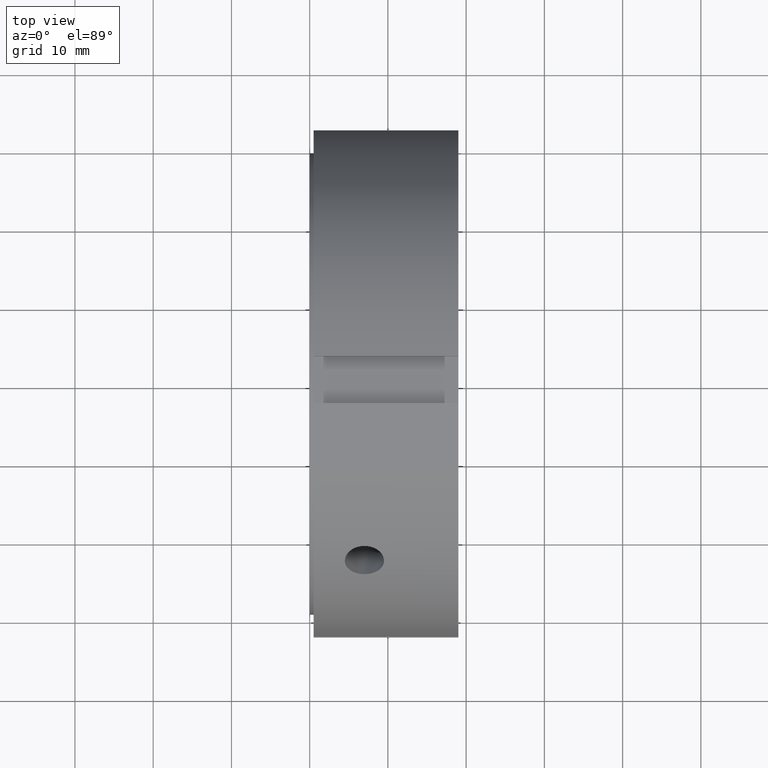
[diagram: clean part render]
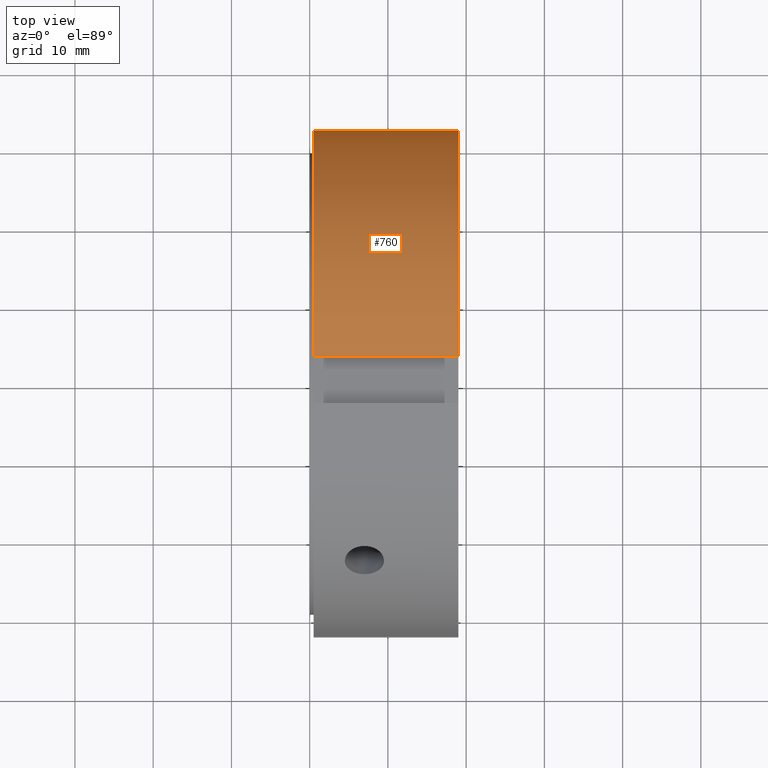
[diagram: same view with one face highlighted and labeled with its STEP entity id]
A machine part, top view. The second image highlights one B-rep face of the part: STEP entity #760.
In plain terms, the highlighted cylindrical surface (partial cylindrical patch) has radius 32.5 mm, axis along (1, 0, 0).
Its self-contained STEP definition (entity closure, byte-faithful):
#633=CARTESIAN_POINT('',(0.499999999999994,3.000000000000001,32.361242250568807));
#634=VERTEX_POINT('',#633);
#649=CARTESIAN_POINT('',(18.999999999999993,3.000000000000001,32.361242250568814));
#650=VERTEX_POINT('',#649);
#657=CARTESIAN_POINT('',(0.499999999999993,3.000000000000001,32.361242250568814));
#658=DIRECTION('',(1.0,0.0,0.0));
#659=VECTOR('',#658,18.500000000000000);
#660=LINE('',#657,#659);
#661=EDGE_CURVE('',#634,#650,#660,.T.);
#728=CARTESIAN_POINT('',(9.749999999999995,0.0,0.0));
#729=DIRECTION('',(1.0,0.0,0.0));
#730=DIRECTION('',(0.0,1.0,0.0));
#731=AXIS2_PLACEMENT_3D('',#728,#729,#730);
#732=CYLINDRICAL_SURFACE('',#731,32.500000000000000);
#733=ORIENTED_EDGE('',*,*,#661,.T.);
#734=CARTESIAN_POINT('',(18.999999999999993,32.361242250568814,2.999999999999999));
#735=VERTEX_POINT('',#734);
#736=CARTESIAN_POINT('',(18.999999999999993,0.0,0.0));
#737=DIRECTION('',(1.0,0.0,0.0));
#738=DIRECTION('',(0.0,1.0,0.0));
#739=AXIS2_PLACEMENT_3D('',#736,#737,#738);
#740=CIRCLE('',#739,32.500000000000000);
#741=EDGE_CURVE('',#735,#650,#740,.T.);
#742=ORIENTED_EDGE('',*,*,#741,.F.);
#743=CARTESIAN_POINT('',(0.499999999999994,32.361242250568807,2.999999999999999));
#744=VERTEX_POINT('',#743);
#745=CARTESIAN_POINT('',(18.999999999999993,32.361242250568814,2.999999999999999));
#746=DIRECTION('',(-1.0,0.0,0.0));
#747=VECTOR('',#746,18.500000000000000);
#748=LINE('',#745,#747);
#749=EDGE_CURVE('',#735,#744,#748,.T.);
#750=ORIENTED_EDGE('',*,*,#749,.T.);
#751=CARTESIAN_POINT('',(0.499999999999994,0.0,0.0));
#752=DIRECTION('',(1.0,0.0,0.0));
#753=DIRECTION('',(0.0,1.0,0.0));
#754=AXIS2_PLACEMENT_3D('',#751,#752,#753);
#755=CIRCLE('',#754,32.499999999999993);
#756=EDGE_CURVE('',#744,#634,#755,.T.);
#757=ORIENTED_EDGE('',*,*,#756,.T.);
#758=EDGE_LOOP('',(#733,#742,#750,#757));
#759=FACE_OUTER_BOUND('',#758,.T.);
#760=ADVANCED_FACE('',(#759),#732,.T.);